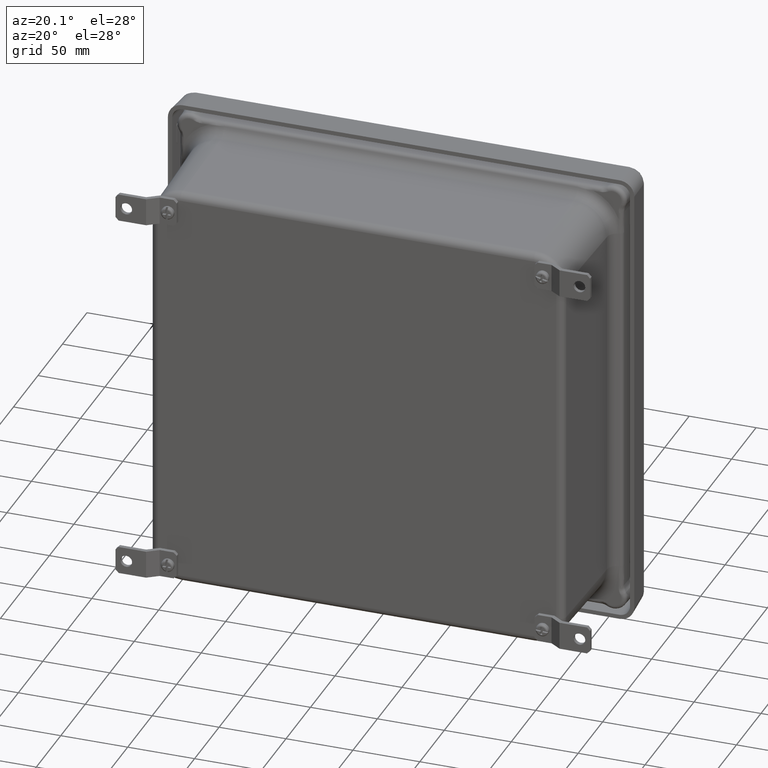
[diagram: clean part render]
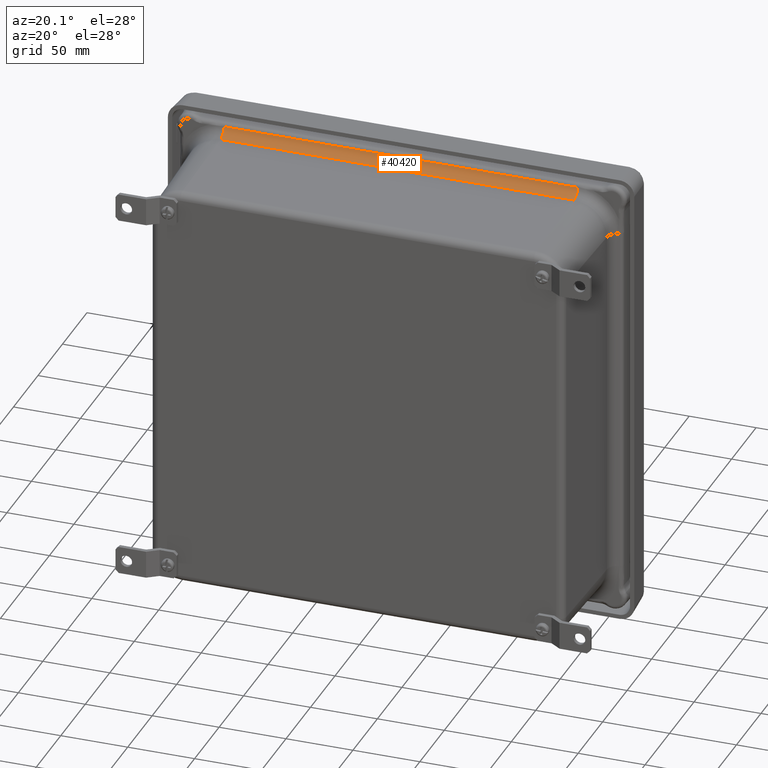
[diagram: same view with one face highlighted and labeled with its STEP entity id]
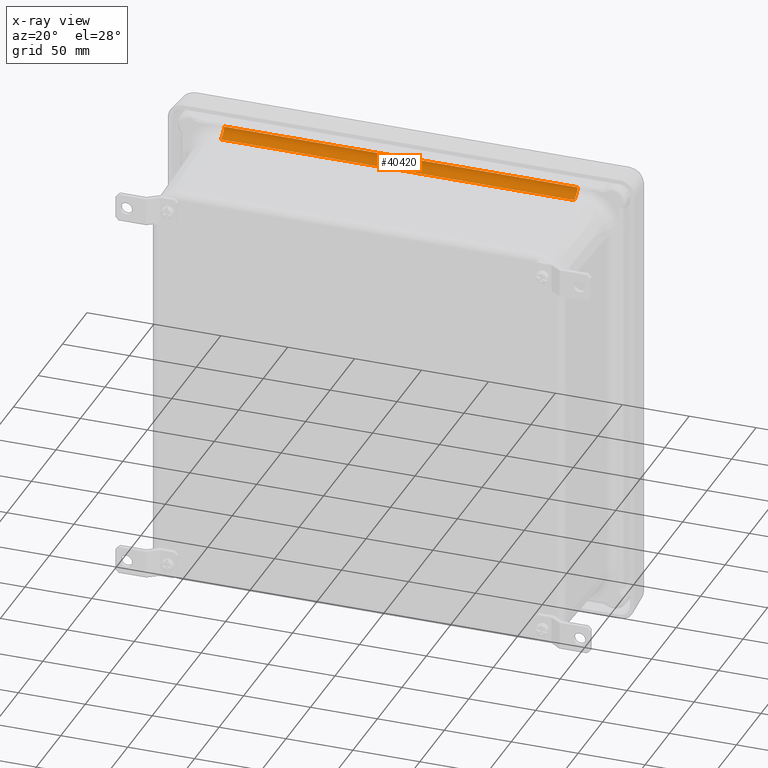
[diagram: x-ray of the same camera — body ghosted, the highlighted face saturated]
A machine part, auxiliary view. The second image highlights one B-rep face of the part: STEP entity #40420.
The next image is the same camera in x-ray: the body ghosted, the highlighted face saturated — about 0% of this face is hidden behind the body in this view.
In plain terms, the highlighted cylindrical surface (edge-blend (fillet) strip) has radius 7.9248 mm, axis along (1, 0, -0).
Its self-contained STEP definition (entity closure, byte-faithful):
#2619 = CARTESIAN_POINT ( 'NONE',  ( -5.198999999999999800, -0.8964719838785354400, 6.171610303672742300 ) ) ;
#4675 = VERTEX_POINT ( 'NONE', #67538 ) ;
#5587 = DIRECTION ( 'NONE',  ( -1.000000000000000000, 0.0000000000000000000, 0.0000000000000000000 ) ) ;
#9244 = EDGE_LOOP ( 'NONE', ( #64356, #28569, #23534, #13591 ) ) ;
#12329 = DIRECTION ( 'NONE',  ( -1.000000000000000000, 3.593085495644085600E-037, 2.101825730843826400E-016 ) ) ;
#13591 = ORIENTED_EDGE ( 'NONE', *, *, #44725, .F. ) ;
#14906 = DIRECTION ( 'NONE',  ( -1.000000000000000000, -0.0000000000000000000, 2.101825730843826600E-016 ) ) ;
#21386 = CIRCLE ( 'NONE', #74693, 0.3120000000000003900 ) ;
#21539 = FACE_OUTER_BOUND ( 'NONE', #9244, .T. ) ;
#23534 = ORIENTED_EDGE ( 'NONE', *, *, #59495, .T. ) ;
#24519 = DIRECTION ( 'NONE',  ( -1.000000000000000000, 0.0000000000000000000, 0.0000000000000000000 ) ) ;
#28562 = VECTOR ( 'NONE', #12329, 39.37007874015748100 ) ;
#28569 = ORIENTED_EDGE ( 'NONE', *, *, #79527, .T. ) ;
#29270 = VERTEX_POINT ( 'NONE', #66189 ) ;
#29877 = DIRECTION ( 'NONE',  ( 0.0000000000000000000, 0.0000000000000000000, 1.000000000000000000 ) ) ;
#30771 = CARTESIAN_POINT ( 'NONE',  ( -5.198999999999999800, -0.8964719838785353300, 6.171610303672742300 ) ) ;
#32089 = VERTEX_POINT ( 'NONE', #68663 ) ;
#34443 = CARTESIAN_POINT ( 'NONE',  ( -5.198999999999999800, -0.6002783338071845400, 6.421189083935124700 ) ) ;
#36553 = CARTESIAN_POINT ( 'NONE',  ( -5.198999999999999800, -0.9060000000000000300, 6.483464784013797600 ) ) ;
#40420 = ADVANCED_FACE ( 'NONE', ( #21539 ), #66516, .F. ) ;
#41411 = EDGE_CURVE ( 'NONE', #32089, #4675, #21386, .T. ) ;
#44725 = EDGE_CURVE ( 'NONE', #4675, #74691, #76592, .T. ) ;
#49018 = CARTESIAN_POINT ( 'NONE',  ( -5.198999999999999800, -0.9060000000000000300, 6.483464784013796700 ) ) ;
#50477 = AXIS2_PLACEMENT_3D ( 'NONE', #36553, #5587, #29877 ) ;
#52154 = AXIS2_PLACEMENT_3D ( 'NONE', #49018, #81422, #62136 ) ;
#55577 = CARTESIAN_POINT ( 'NONE',  ( 5.198999999999999800, -0.9060000000000000300, 6.483464784013794000 ) ) ;
#59452 = VECTOR ( 'NONE', #14906, 39.37007874015748100 ) ;
#59495 = EDGE_CURVE ( 'NONE', #29270, #74691, #61342, .T. ) ;
#61342 = CIRCLE ( 'NONE', #50477, 0.3120000000000003900 ) ;
#62136 = DIRECTION ( 'NONE',  ( 0.0000000000000000000, 0.0000000000000000000, -1.000000000000000000 ) ) ;
#64356 = ORIENTED_EDGE ( 'NONE', *, *, #41411, .F. ) ;
#66189 = CARTESIAN_POINT ( 'NONE',  ( -5.198999999999999800, -0.6002783338071844300, 6.421189083935125600 ) ) ;
#66516 = CYLINDRICAL_SURFACE ( 'NONE', #52154, 0.3120000000000003900 ) ;
#67538 = CARTESIAN_POINT ( 'NONE',  ( 5.198999999999999800, -0.8964719838785354400, 6.171610303672740500 ) ) ;
#68663 = CARTESIAN_POINT ( 'NONE',  ( 5.198999999999999800, -0.6002783338071844300, 6.421189083935122900 ) ) ;
#74691 = VERTEX_POINT ( 'NONE', #2619 ) ;
#74693 = AXIS2_PLACEMENT_3D ( 'NONE', #55577, #24519, #81265 ) ;
#76592 = LINE ( 'NONE', #30771, #28562 ) ;
#78453 = LINE ( 'NONE', #34443, #59452 ) ;
#79527 = EDGE_CURVE ( 'NONE', #32089, #29270, #78453, .T. ) ;
#81265 = DIRECTION ( 'NONE',  ( 0.0000000000000000000, 0.0000000000000000000, 1.000000000000000000 ) ) ;
#81422 = DIRECTION ( 'NONE',  ( 1.000000000000000000, 0.0000000000000000000, -2.101825730843826600E-016 ) ) ;